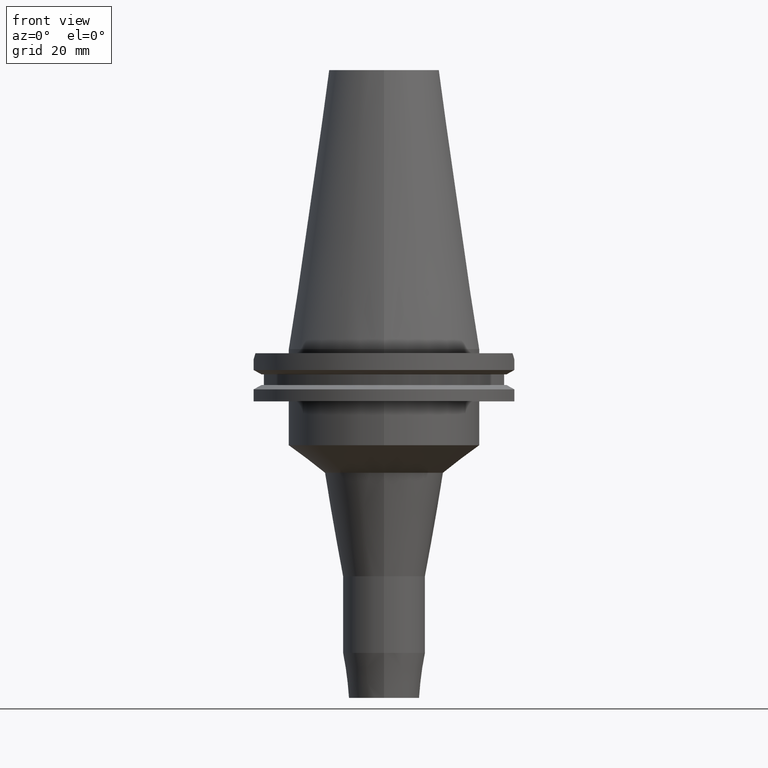
[diagram: clean part render]
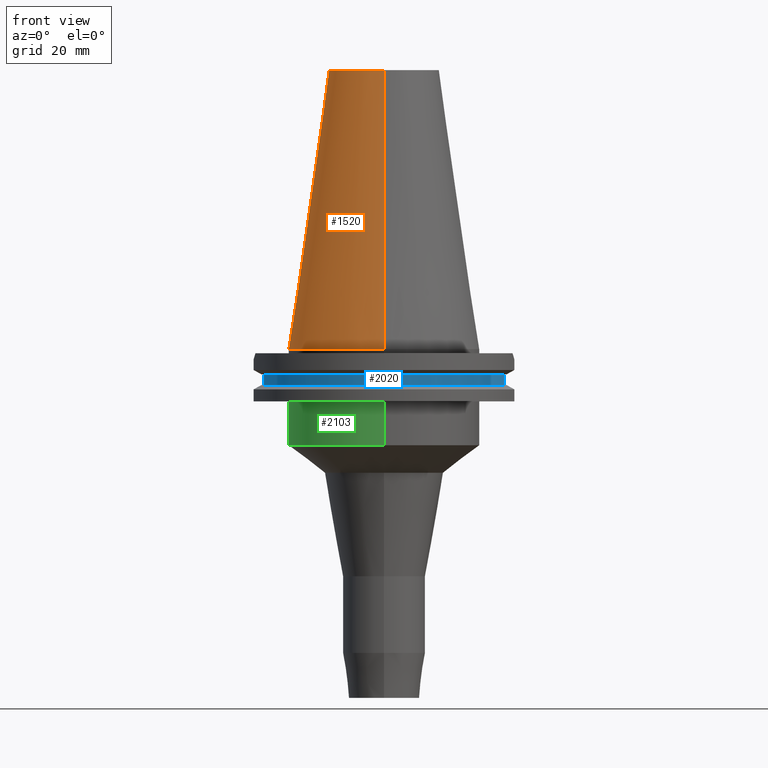
[diagram: same view with three faces highlighted in distinct colors, each labeled with its STEP entity id]
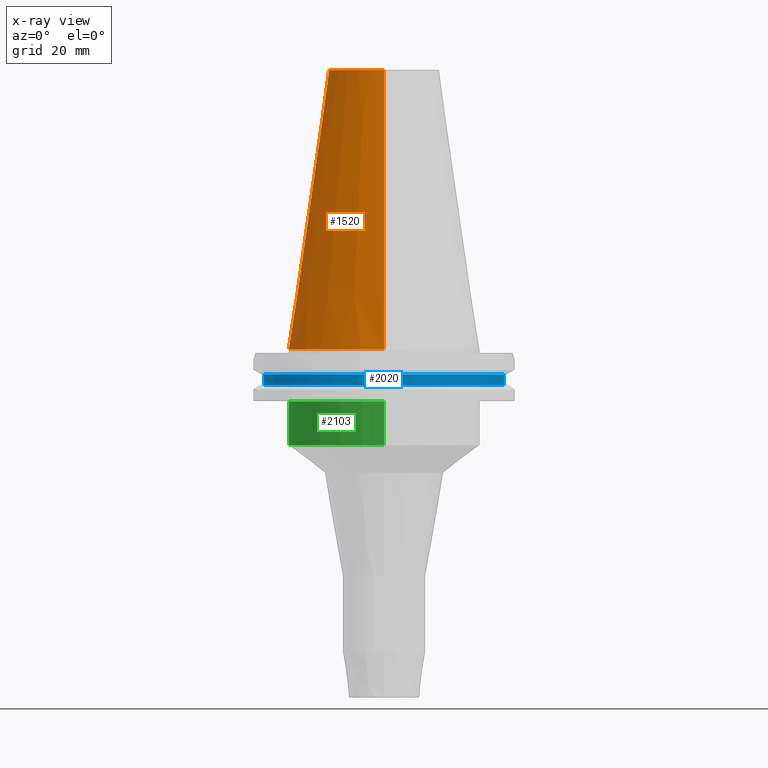
[diagram: x-ray of the same camera — body ghosted, the three highlighted faces saturated]
A machine part, front view with three faces highlighted in distinct colors.
The next image is the same camera in x-ray (body ghosted, the three faces saturated) — at least one of them is partly hidden behind the body in this view.
Their STEP definitions:

[orange] entity #1520 — the highlighted conical surface has half-angle 8.297 deg.
#17=DIRECTION('',(0.E0,-1.443069799457E-1,-9.895329683942E-1));
#18=VECTOR('',#17,1.026746993229E2);
#19=CARTESIAN_POINT('',(0.E0,-2.010832422387E1,1.016E2));
#20=LINE('',#19,#18);
#25=CARTESIAN_POINT('',(0.E0,0.E0,8.242295734817E-13));
#26=DIRECTION('',(0.E0,0.E0,-1.E0));
#27=DIRECTION('',(0.E0,-1.E0,0.E0));
#28=AXIS2_PLACEMENT_3D('',#25,#26,#27);
#33=DIRECTION('',(0.E0,1.443069799457E-1,-9.895329683942E-1));
#34=VECTOR('',#33,1.026746993229E2);
#35=CARTESIAN_POINT('',(0.E0,2.010832422387E1,1.016E2));
#36=LINE('',#35,#34);
#1256=CARTESIAN_POINT('',(0.E0,0.E0,1.016E2));
#1257=DIRECTION('',(0.E0,0.E0,-1.E0));
#1258=DIRECTION('',(0.E0,-1.E0,0.E0));
#1259=AXIS2_PLACEMENT_3D('',#1256,#1257,#1258);
#1288=CARTESIAN_POINT('',(0.E0,2.010832422387E1,1.016E2));
#1289=CARTESIAN_POINT('',(0.E0,3.4925E1,5.542233338929E-13));
#1290=VERTEX_POINT('',#1288);
#1291=VERTEX_POINT('',#1289);
#1292=CARTESIAN_POINT('',(0.E0,-2.010832422388E1,1.016E2));
#1293=VERTEX_POINT('',#1292);
#1294=CARTESIAN_POINT('',(0.E0,-3.4925E1,5.542233338929E-13));
#1295=VERTEX_POINT('',#1294);
#1505=CARTESIAN_POINT('',(0.E0,0.E0,5.08E1));
#1506=DIRECTION('',(0.E0,0.E0,-1.E0));
#1507=DIRECTION('',(0.E0,-1.E0,0.E0));
#1508=AXIS2_PLACEMENT_3D('',#1505,#1506,#1507);
#1509=CONICAL_SURFACE('',#1508,2.751666211194E1,8.29715E0);
#1511=ORIENTED_EDGE('',*,*,#1510,.F.);
#1513=ORIENTED_EDGE('',*,*,#1512,.F.);
#1515=ORIENTED_EDGE('',*,*,#1514,.T.);
#1517=ORIENTED_EDGE('',*,*,#1516,.T.);
#1518=EDGE_LOOP('',(#1511,#1513,#1515,#1517));
#1519=FACE_OUTER_BOUND('',#1518,.F.);
#29=CIRCLE('',#28,3.4925E1);
#1260=CIRCLE('',#1259,2.010832422388E1);
#1510=EDGE_CURVE('',#1290,#1291,#36,.T.);
#1512=EDGE_CURVE('',#1293,#1290,#1260,.T.);
#1514=EDGE_CURVE('',#1293,#1295,#20,.T.);
#1516=EDGE_CURVE('',#1295,#1291,#29,.T.);
#1520=ADVANCED_FACE('',(#1519),#1509,.T.);

[blue] entity #2020 — the highlighted cylindrical surface (partial cylindrical patch) has radius 45.645 mm, axis along (0, 0, 1).
#658=CARTESIAN_POINT('',(0.E0,0.E0,-9.2075E0));
#659=DIRECTION('',(0.E0,0.E0,-1.E0));
#660=DIRECTION('',(9.588773428655E-1,-2.838207908862E-1,0.E0));
#661=AXIS2_PLACEMENT_3D('',#658,#659,#660);
#666=CARTESIAN_POINT('',(0.E0,0.E0,-9.2075E0));
#667=DIRECTION('',(0.E0,0.E0,-1.E0));
#668=DIRECTION('',(0.E0,-1.E0,0.E0));
#669=AXIS2_PLACEMENT_3D('',#666,#667,#668);
#697=DIRECTION('',(-1.110223024625E-14,0.E0,-1.E0));
#698=VECTOR('',#697,3.84E0);
#699=CARTESIAN_POINT('',(4.376795631509E1,-1.2955E1,-9.2075E0));
#700=LINE('',#699,#698);
#704=DIRECTION('',(0.E0,0.E0,1.E0));
#705=VECTOR('',#704,3.84E0);
#706=CARTESIAN_POINT('',(-4.376795631509E1,-1.2955E1,-1.30475E1));
#707=LINE('',#706,#705);
#734=CARTESIAN_POINT('',(0.E0,0.E0,-1.30475E1));
#735=DIRECTION('',(0.E0,0.E0,1.E0));
#736=DIRECTION('',(-9.588773428655E-1,-2.838207908862E-1,0.E0));
#737=AXIS2_PLACEMENT_3D('',#734,#735,#736);
#742=CARTESIAN_POINT('',(0.E0,0.E0,-1.30475E1));
#743=DIRECTION('',(0.E0,0.E0,1.E0));
#744=DIRECTION('',(0.E0,-1.E0,0.E0));
#745=AXIS2_PLACEMENT_3D('',#742,#743,#744);
#1449=CARTESIAN_POINT('',(4.376795631509E1,-1.2955E1,-1.30475E1));
#1450=VERTEX_POINT('',#1449);
#1451=CARTESIAN_POINT('',(4.376795631509E1,-1.2955E1,-9.2075E0));
#1452=VERTEX_POINT('',#1451);
#1466=CARTESIAN_POINT('',(-4.376795631509E1,-1.2955E1,-9.2075E0));
#1467=VERTEX_POINT('',#1466);
#1468=CARTESIAN_POINT('',(-4.376795631509E1,-1.2955E1,-1.30475E1));
#1469=VERTEX_POINT('',#1468);
#1489=CARTESIAN_POINT('',(-2.461224688054E-14,-4.5645E1,-1.30475E1));
#1490=VERTEX_POINT('',#1489);
#1493=CARTESIAN_POINT('',(2.461224688054E-14,-4.5645E1,-9.2075E0));
#1494=VERTEX_POINT('',#1493);
#2005=CARTESIAN_POINT('',(0.E0,0.E0,-1.3843E2));
#2006=DIRECTION('',(0.E0,0.E0,1.E0));
#2007=DIRECTION('',(0.E0,1.E0,0.E0));
#2008=AXIS2_PLACEMENT_3D('',#2005,#2006,#2007);
#2009=CYLINDRICAL_SURFACE('',#2008,4.5645E1);
#2010=ORIENTED_EDGE('',*,*,#1921,.T.);
#2012=ORIENTED_EDGE('',*,*,#2011,.F.);
#2014=ORIENTED_EDGE('',*,*,#2013,.F.);
#2015=ORIENTED_EDGE('',*,*,#1963,.T.);
#2016=ORIENTED_EDGE('',*,*,#1997,.F.);
#2017=ORIENTED_EDGE('',*,*,#1995,.F.);
#2018=EDGE_LOOP('',(#2010,#2012,#2014,#2015,#2016,#2017));
#2019=FACE_OUTER_BOUND('',#2018,.F.);
#662=CIRCLE('',#661,4.5645E1);
#670=CIRCLE('',#669,4.5645E1);
#738=CIRCLE('',#737,4.5645E1);
#746=CIRCLE('',#745,4.5645E1);
#1921=EDGE_CURVE('',#1452,#1450,#700,.T.);
#1963=EDGE_CURVE('',#1469,#1467,#707,.T.);
#1995=EDGE_CURVE('',#1452,#1494,#662,.T.);
#1997=EDGE_CURVE('',#1494,#1467,#670,.T.);
#2011=EDGE_CURVE('',#1490,#1450,#746,.T.);
#2013=EDGE_CURVE('',#1469,#1490,#738,.T.);
#2020=ADVANCED_FACE('',(#2019),#2009,.T.);

[green] entity #2103 — the highlighted cylindrical surface (partial cylindrical patch) has radius 34.925 mm, axis along (0, 0, 1).
#219=CARTESIAN_POINT('',(0.E0,0.E0,-1.905E1));
#220=DIRECTION('',(0.E0,0.E0,-1.E0));
#221=DIRECTION('',(0.E0,-1.E0,0.E0));
#222=AXIS2_PLACEMENT_3D('',#219,#220,#221);
#816=DIRECTION('',(0.E0,3.786591381794E-14,-1.E0));
#817=VECTOR('',#816,1.595E1);
#818=CARTESIAN_POINT('',(0.E0,-3.4925E1,-1.905E1));
#819=LINE('',#818,#817);
#823=DIRECTION('',(0.E0,-3.786591381794E-14,-1.E0));
#824=VECTOR('',#823,1.595E1);
#825=CARTESIAN_POINT('',(0.E0,3.4925E1,-1.905E1));
#826=LINE('',#825,#824);
#845=CARTESIAN_POINT('',(0.E0,0.E0,-3.5E1));
#846=DIRECTION('',(0.E0,0.E0,1.E0));
#847=DIRECTION('',(0.E0,1.E0,0.E0));
#848=AXIS2_PLACEMENT_3D('',#845,#846,#847);
#1344=CARTESIAN_POINT('',(0.E0,-3.4925E1,-1.905E1));
#1345=CARTESIAN_POINT('',(0.E0,3.4925E1,-1.905E1));
#1346=VERTEX_POINT('',#1344);
#1347=VERTEX_POINT('',#1345);
#1348=CARTESIAN_POINT('',(0.E0,3.4925E1,-3.5E1));
#1349=VERTEX_POINT('',#1348);
#1350=CARTESIAN_POINT('',(0.E0,-3.4925E1,-3.5E1));
#1351=VERTEX_POINT('',#1350);
#2089=CARTESIAN_POINT('',(0.E0,0.E0,-1.3843E2));
#2090=DIRECTION('',(0.E0,0.E0,1.E0));
#2091=DIRECTION('',(0.E0,1.E0,0.E0));
#2092=AXIS2_PLACEMENT_3D('',#2089,#2090,#2091);
#2093=CYLINDRICAL_SURFACE('',#2092,3.4925E1);
#2095=ORIENTED_EDGE('',*,*,#2094,.F.);
#2096=ORIENTED_EDGE('',*,*,#1640,.F.);
#2098=ORIENTED_EDGE('',*,*,#2097,.T.);
#2100=ORIENTED_EDGE('',*,*,#2099,.F.);
#2101=EDGE_LOOP('',(#2095,#2096,#2098,#2100));
#2102=FACE_OUTER_BOUND('',#2101,.F.);
#223=CIRCLE('',#222,3.4925E1);
#849=CIRCLE('',#848,3.4925E1);
#1640=EDGE_CURVE('',#1346,#1347,#223,.T.);
#2094=EDGE_CURVE('',#1347,#1349,#826,.T.);
#2097=EDGE_CURVE('',#1346,#1351,#819,.T.);
#2099=EDGE_CURVE('',#1349,#1351,#849,.T.);
#2103=ADVANCED_FACE('',(#2102),#2093,.T.);